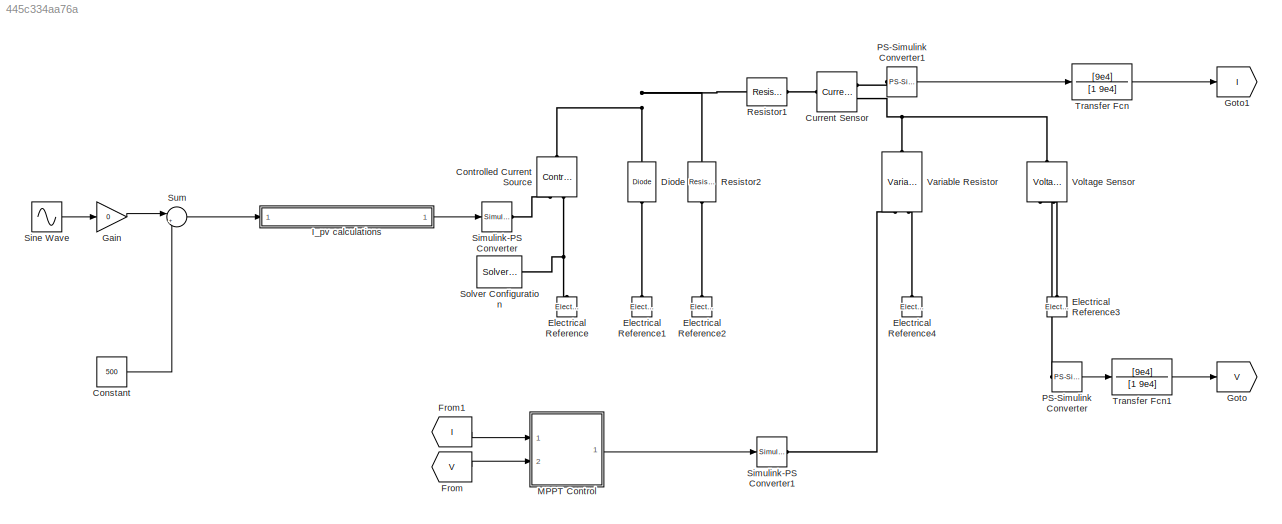
MODEL slx_445c334aa76a
KIND model
CONFIG AbsTol = auto
CONFIG EnableMultiTasking = off
CONFIG FixedStep = 0.001
CONFIG MaxStep = auto
CONFIG MinStep = auto
CONFIG RelTol = 1e-3
CONFIG SampleTimeConstraint = Unconstrained
CONFIG Solver = FixedStepAuto
CONFIG SolverName = FixedStepAuto
CONFIG StartTime = 0.0
CONFIG StopTime = inf
BLOCK [Constant] Constant
  Value = 500
BLOCK [Reference] Controlled Current Source  REF=fl_lib/Electrical/Electrical Sources/Controlled Current
Source
  Ports = [0, 0, 0, 0, 0, 1, 2]
  SourceBlock = fl_lib/Electrical/Electrical Sources/Controlled Current\nSource
  SourceProductBaseCode = SS
  SourceProductName = Simscape
  SourceType = Controlled Current\nSource
BLOCK [Reference] Current Sensor  REF=fl_lib/Electrical/Electrical Sensors/Current Sensor
  Ports = [0, 0, 0, 0, 0, 1, 2]
  SourceBlock = fl_lib/Electrical/Electrical Sensors/Current Sensor
  SourceProductBaseCode = SS
  SourceProductName = Simscape
  SourceType = Current Sensor
BLOCK [Reference] Diode  REF=elec_lib/Semiconductor
Devices/Diode
  Ports = [0, 0, 0, 0, 0, 1, 1]
  SourceBlock = elec_lib/Semiconductor\nDevices/Diode
  SourceProductBaseCode = SN
  SourceProductName = Simscape Electronics
  SourceType = Diode
BLOCK [Reference] Electrical Reference  REF=fl_lib/Electrical/Electrical Elements/Electrical Reference
  Ports = [0, 0, 0, 0, 0, 1]
  SourceBlock = fl_lib/Electrical/Electrical Elements/Electrical Reference
  SourceProductBaseCode = SS
  SourceProductName = Simscape
  SourceType = Electrical Reference
BLOCK [Reference] Electrical Reference1  REF=fl_lib/Electrical/Electrical Elements/Electrical Reference
  Ports = [0, 0, 0, 0, 0, 1]
  SourceBlock = fl_lib/Electrical/Electrical Elements/Electrical Reference
  SourceProductBaseCode = SS
  SourceProductName = Simscape
  SourceType = Electrical Reference
BLOCK [Reference] Electrical Reference2  REF=fl_lib/Electrical/Electrical Elements/Electrical Reference
  Ports = [0, 0, 0, 0, 0, 1]
  SourceBlock = fl_lib/Electrical/Electrical Elements/Electrical Reference
  SourceProductBaseCode = SS
  SourceProductName = Simscape
  SourceType = Electrical Reference
BLOCK [Reference] Electrical Reference3  REF=fl_lib/Electrical/Electrical Elements/Electrical Reference
  Ports = [0, 0, 0, 0, 0, 1]
  SourceBlock = fl_lib/Electrical/Electrical Elements/Electrical Reference
  SourceProductBaseCode = SS
  SourceProductName = Simscape
  SourceType = Electrical Reference
BLOCK [Reference] Electrical Reference4  REF=fl_lib/Electrical/Electrical Elements/Electrical Reference
  Ports = [0, 0, 0, 0, 0, 1]
  SourceBlock = fl_lib/Electrical/Electrical Elements/Electrical Reference
  SourceProductBaseCode = SS
  SourceProductName = Simscape
  SourceType = Electrical Reference
BLOCK [From] From
  GotoTag = V
BLOCK [From] From1
  GotoTag = I
BLOCK [Gain] Gain
  Gain = 0
  OutDataTypeStr = Inherit: Inherit via internal rule
  ParamDataTypeStr = Inherit: Inherit via internal rule
  SaturateOnIntegerOverflow = off
BLOCK [Goto] Goto
  GotoTag = V
BLOCK [Goto] Goto1
  GotoTag = I
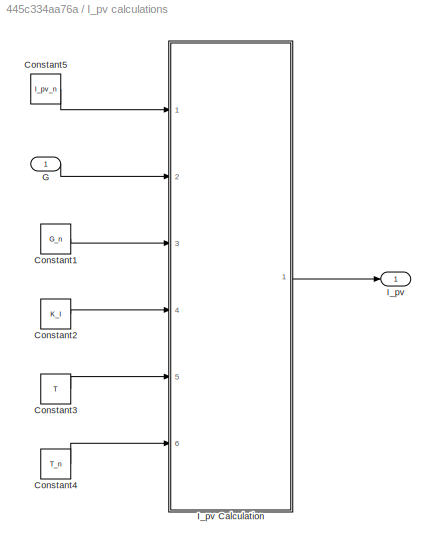
BLOCK [SubSystem] I_pv calculations
  Ports = [1, 1]
  RequestExecContextInheritance = off
  Variant = off
BLOCK [Constant] I_pv calculations/Constant1
  Value = G_n
BLOCK [Constant] I_pv calculations/Constant2
  Value = K_I
BLOCK [Constant] I_pv calculations/Constant3
  Value = T
BLOCK [Constant] I_pv calculations/Constant4
  Value = T_n
BLOCK [Constant] I_pv calculations/Constant5
  Value = I_pv_n
BLOCK [Inport] I_pv calculations/G
  IconDisplay = Port number
BLOCK [Outport] I_pv calculations/I_pv
  IconDisplay = Port number
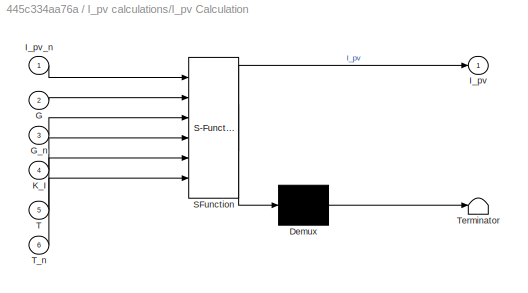
BLOCK [SubSystem] I_pv calculations/I_pv Calculation
  ErrorFcn = Stateflow.Translate.translate
  PermitHierarchicalResolution = ExplicitOnly
  Ports = [6, 1]
  RequestExecContextInheritance = off
  SFBlockType = MATLAB Function
  TreatAsAtomicUnit = on
  Variant = off
BLOCK [Demux] I_pv calculations/I_pv Calculation/ Demux 
  Outputs = 1
  Ports = [1, 1]
BLOCK [S-Function] I_pv calculations/I_pv Calculation/ SFunction 
  EnableBusSupport = on
  FunctionName = sf_sfun
  PortCounts = [6 2]
  Ports = [6, 2]
  SFcnIsStateOwnerBlock = off
  SFunctionDeploymentMode = off
  Tag = Stateflow S-Function GSK_PVModel_06 1
BLOCK [Terminator] I_pv calculations/I_pv Calculation/ Terminator 
BLOCK [Inport] I_pv calculations/I_pv Calculation/G
  IconDisplay = Port number
  Port = 2
BLOCK [Inport] I_pv calculations/I_pv Calculation/G_n
  IconDisplay = Port number
  Port = 3
BLOCK [Outport] I_pv calculations/I_pv Calculation/I_pv
  IconDisplay = Port number
BLOCK [Inport] I_pv calculations/I_pv Calculation/I_pv_n
  IconDisplay = Port number
BLOCK [Inport] I_pv calculations/I_pv Calculation/K_I
  IconDisplay = Port number
  Port = 4
BLOCK [Inport] I_pv calculations/I_pv Calculation/T
  IconDisplay = Port number
  Port = 5
BLOCK [Inport] I_pv calculations/I_pv Calculation/T_n
  IconDisplay = Port number
  Port = 6
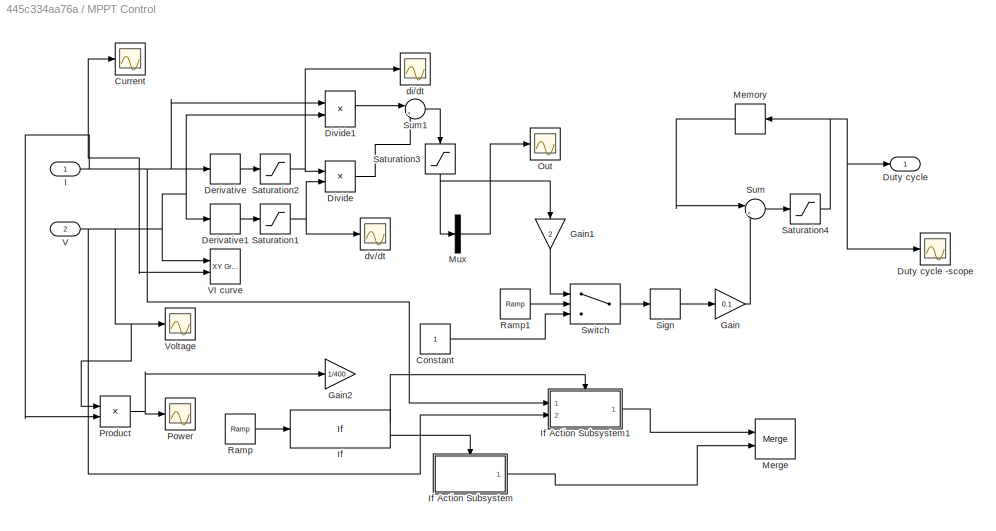
BLOCK [SubSystem] MPPT Control
  Ports = [2, 1]
  RequestExecContextInheritance = off
  Variant = off
BLOCK [Constant] MPPT Control/Constant
BLOCK [Scope] MPPT Control/Current
  NumInputPorts = 1
  Ports = [1]
  ScopeSpecificationString = Simulink.scopes.TimeScopeBlockCfg('CurrentConfiguration', extmgr.ConfigurationSet(extmgr.Configuration('Core','General UI',true),extmgr.Configuration('Core','Source UI',true),extmgr.Configuration('Sources','WiredSimulink',true,'DataLoggingVariableName','ScopeData1'),extmgr.Configuration('Visuals','Time Domain',true,'SerializedDisplays',{struct('MinYLimReal','2.45414','MaxYLimReal','6.99236','YLabe...<+1429ch>
BLOCK [Derivative] MPPT Control/Derivative
  CoefficientInTFapproximation = 300
BLOCK [Derivative] MPPT Control/Derivative1
  CoefficientInTFapproximation = 300
BLOCK [Product] MPPT Control/Divide
  InputSameDT = off
  Inputs = */
  OutDataTypeStr = Inherit: Inherit via internal rule
  Ports = [2, 1]
  RndMeth = Floor
  SaturateOnIntegerOverflow = off
BLOCK [Product] MPPT Control/Divide1
  InputSameDT = off
  Inputs = */
  OutDataTypeStr = Inherit: Inherit via internal rule
  Ports = [2, 1]
  RndMeth = Floor
  SaturateOnIntegerOverflow = off
BLOCK [Outport] MPPT Control/Duty cycle
  IconDisplay = Port number
BLOCK [Scope] MPPT Control/Duty cycle -scope
  NumInputPorts = 1
  Ports = [1]
  ScopeSpecificationString = Simulink.scopes.TimeScopeBlockCfg('CurrentConfiguration', extmgr.ConfigurationSet(extmgr.Configuration('Core','General UI',true),extmgr.Configuration('Core','Source UI',true),extmgr.Configuration('Sources','WiredSimulink',true,'DataLoggingVariableName','ScopeData3'),extmgr.Configuration('Visuals','Time Domain',true,'SerializedDisplays',{struct('MinYLimReal','-21.625','MaxYLimReal','224.625','YLabe...<+1465ch>
BLOCK [Gain] MPPT Control/Gain
  Gain = 0.1
  OutDataTypeStr = Inherit: Inherit via internal rule
  ParamDataTypeStr = Inherit: Inherit via internal rule
  SaturateOnIntegerOverflow = off
BLOCK [Gain] MPPT Control/Gain1
  Gain = 2
  OutDataTypeStr = Inherit: Inherit via internal rule
  ParamDataTypeStr = Inherit: Inherit via internal rule
  SaturateOnIntegerOverflow = off
BLOCK [Gain] MPPT Control/Gain2
  Gain = 1/400
  OutDataTypeStr = Inherit: Inherit via internal rule
  ParamDataTypeStr = Inherit: Inherit via internal rule
  SaturateOnIntegerOverflow = off
BLOCK [Inport] MPPT Control/I
  IconDisplay = Port number
BLOCK [If] MPPT Control/If
  IfExpression = u1 > 1
  Ports = [1, 2]
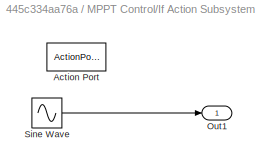
BLOCK [SubSystem] MPPT Control/If Action Subsystem
  Ports = [0, 1, 0, 0, 0, 0, 0, 1]
  RequestExecContextInheritance = off
  TreatAsAtomicUnit = on
  Variant = off
BLOCK [ActionPort] MPPT Control/If Action Subsystem/Action Port
  ActionType = else
BLOCK [Outport] MPPT Control/If Action Subsystem/Out1
  IconDisplay = Port number
BLOCK [Sin] MPPT Control/If Action Subsystem/Sine Wave
  Amplitude = 100
  Bias = 100
  Ports = [0, 1]
  SampleTime = 0
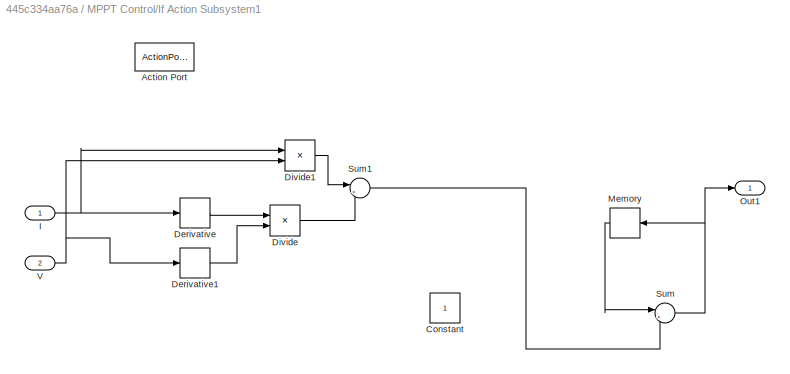
BLOCK [SubSystem] MPPT Control/If Action Subsystem1
  Ports = [2, 1, 0, 0, 0, 0, 0, 1]
  RequestExecContextInheritance = off
  TreatAsAtomicUnit = on
  Variant = off
BLOCK [ActionPort] MPPT Control/If Action Subsystem1/Action Port
  ActionType = then
BLOCK [Constant] MPPT Control/If Action Subsystem1/Constant
BLOCK [Derivative] MPPT Control/If Action Subsystem1/Derivative
BLOCK [Derivative] MPPT Control/If Action Subsystem1/Derivative1
BLOCK [Product] MPPT Control/If Action Subsystem1/Divide
  InputSameDT = off
  Inputs = */
  OutDataTypeStr = Inherit: Inherit via internal rule
  Ports = [2, 1]
  RndMeth = Floor
  SaturateOnIntegerOverflow = off
BLOCK [Product] MPPT Control/If Action Subsystem1/Divide1
  InputSameDT = off
  Inputs = */
  OutDataTypeStr = Inherit: Inherit via internal rule
  Ports = [2, 1]
  RndMeth = Floor
  SaturateOnIntegerOverflow = off
BLOCK [Inport] MPPT Control/If Action Subsystem1/I
  IconDisplay = Port number
BLOCK [Memory] MPPT Control/If Action Subsystem1/Memory
  X0 = 2
BLOCK [Outport] MPPT Control/If Action Subsystem1/Out1
  IconDisplay = Port number
BLOCK [Sum] MPPT Control/If Action Subsystem1/Sum
  IconShape = round
  InputSameDT = off
  Inputs = |++
  OutDataTypeStr = Inherit: Inherit via internal rule
  Ports = [2, 1]
  SaturateOnIntegerOverflow = off
BLOCK [Sum] MPPT Control/If Action Subsystem1/Sum1
  IconShape = round
  InputSameDT = off
  Inputs = |++
  OutDataTypeStr = Inherit: Inherit via internal rule
  Ports = [2, 1]
  SaturateOnIntegerOverflow = off
BLOCK [Inport] MPPT Control/If Action Subsystem1/V
  IconDisplay = Port number
  Port = 2
BLOCK [Memory] MPPT Control/Memory
  X0 = 2
BLOCK [Merge] MPPT Control/Merge
  Ports = [2, 1]
BLOCK [Mux] MPPT Control/Mux
  DisplayOption = bar
  Inputs = 1
  Ports = [1, 1]
BLOCK [Scope] MPPT Control/Out
  NumInputPorts = 1
  Ports = [1]
  ScopeSpecificationString = Simulink.scopes.TimeScopeBlockCfg('CurrentConfiguration', extmgr.ConfigurationSet(extmgr.Configuration('Core','General UI',true),extmgr.Configuration('Core','Source UI',true),extmgr.Configuration('Sources','WiredSimulink',true,'DataLoggingVariableName','ScopeData2'),extmgr.Configuration('Visuals','Time Domain',true,'SerializedDisplays',{struct('MinYLimReal','-754.58072','MaxYLimReal','104.81335','...<+1481ch>
BLOCK [Scope] MPPT Control/Power
  NumInputPorts = 1
  Ports = [1]
  ScopeSpecificationString = Simulink.scopes.TimeScopeBlockCfg('CurrentConfiguration', extmgr.ConfigurationSet(extmgr.Configuration('Core','General UI',true),extmgr.Configuration('Core','Source UI',true),extmgr.Configuration('Sources','WiredSimulink',true,'DataLoggingVariableName','ScopeData1'),extmgr.Configuration('Visuals','Time Domain',true,'SerializedDisplays',{struct('MinYLimReal','-25.10977','MaxYLimReal','225.98795','Y...<+1473ch>
BLOCK [Product] MPPT Control/Product
  InputSameDT = off
  OutDataTypeStr = Inherit: Inherit via internal rule
  Ports = [2, 1]
  RndMeth = Floor
  SaturateOnIntegerOverflow = off
BLOCK [Reference] MPPT Control/Ramp  REF=simulink/Sources/Ramp
  Ports = [0, 1]
  SourceBlock = simulink/Sources/Ramp
  SourceProductBaseCode = SL
  SourceProductName = Simulink
  SourceType = Ramp
BLOCK [Reference] MPPT Control/Ramp1  REF=simulink/Sources/Ramp
  Ports = [0, 1]
  SourceBlock = simulink/Sources/Ramp
  SourceProductBaseCode = SL
  SourceProductName = Simulink
  SourceType = Ramp
BLOCK [Saturate] MPPT Control/Saturation1
  InputPortMap = u0
  LowerLimit = -200
  Ports = [1, 1]
  UpperLimit = 200
BLOCK [Saturate] MPPT Control/Saturation2
  InputPortMap = u0
  LowerLimit = -200
  Ports = [1, 1]
  UpperLimit = 200
BLOCK [Saturate] MPPT Control/Saturation3
  InputPortMap = u0
  LowerLimit = -200
  Ports = [1, 1]
  UpperLimit = 200
BLOCK [Saturate] MPPT Control/Saturation4
  InputPortMap = u0
  LowerLimit = 0
  Ports = [1, 1]
  UpperLimit = 200
BLOCK [Signum] MPPT Control/Sign
BLOCK [Sum] MPPT Control/Sum
  IconShape = round
  InputSameDT = off
  Inputs = |++
  OutDataTypeStr = Inherit: Inherit via internal rule
  Ports = [2, 1]
  SaturateOnIntegerOverflow = off
BLOCK [Sum] MPPT Control/Sum1
  IconShape = round
  InputSameDT = off
  Inputs = |++
  OutDataTypeStr = Inherit: Inherit via internal rule
  Ports = [2, 1]
  SaturateOnIntegerOverflow = off
BLOCK [Switch] MPPT Control/Switch
  Criteria = u2 > Threshold
  InputSameDT = off
  SaturateOnIntegerOverflow = off
  Threshold = 1
BLOCK [Inport] MPPT Control/V
  IconDisplay = Port number
  Port = 2
BLOCK [Reference] MPPT Control/VI curve  REF=simulink/Sinks/XY Graph
  Ports = [2]
  SourceBlock = simulink/Sinks/XY Graph
  SourceProductBaseCode = SL
  SourceProductName = Simulink
  SourceType = XY scope.
BLOCK [Scope] MPPT Control/Voltage
  NumInputPorts = 1
  Ports = [1]
  ScopeSpecificationString = Simulink.scopes.TimeScopeBlockCfg('CurrentConfiguration', extmgr.ConfigurationSet(extmgr.Configuration('Core','General UI',true),extmgr.Configuration('Core','Source UI',true),extmgr.Configuration('Sources','WiredSimulink',true),extmgr.Configuration('Visuals','Time Domain',true,'SerializedDisplays',{struct('MinYLimReal','-10.17481','MaxYLimReal','91.57333','YLabelReal','','MinYLimMag','0.00000','Ma...<+1424ch>
BLOCK [Scope] MPPT Control/di//dt
  NumInputPorts = 1
  Ports = [1]
  ScopeSpecificationString = Simulink.scopes.TimeScopeBlockCfg('CurrentConfiguration', extmgr.ConfigurationSet(extmgr.Configuration('Core','General UI',true),extmgr.Configuration('Core','Source UI',true),extmgr.Configuration('Sources','WiredSimulink',true,'DataLoggingVariableName','ScopeData1'),extmgr.Configuration('Visuals','Time Domain',true),extmgr.Configuration('Tools','Plot Navigation',true),extmgr.Configuration('Tools',...<+40ch>
BLOCK [Scope] MPPT Control/dv//dt
  NumInputPorts = 1
  Ports = [1]
  ScopeSpecificationString = Simulink.scopes.TimeScopeBlockCfg('CurrentConfiguration', extmgr.ConfigurationSet(extmgr.Configuration('Core','General UI',true),extmgr.Configuration('Core','Source UI',true),extmgr.Configuration('Sources','WiredSimulink',true,'DataLoggingVariableName','ScopeData2'),extmgr.Configuration('Visuals','Time Domain',true,'SerializedDisplays',{struct('MinYLimReal','-297.70282','MaxYLimReal','68.60075','Y...<+1401ch>
BLOCK [Reference] PS-Simulink Converter  REF=nesl_utility/PS-Simulink
Converter
  Ports = [0, 1, 0, 0, 0, 1]
  SourceBlock = nesl_utility/PS-Simulink\nConverter
  SourceProductBaseCode = SS
  SourceProductName = Simscape
  SourceType = PS-Simulink\nConverter
BLOCK [Reference] PS-Simulink Converter1  REF=nesl_utility/PS-Simulink
Converter
  Ports = [0, 1, 0, 0, 0, 1]
  SourceBlock = nesl_utility/PS-Simulink\nConverter
  SourceProductBaseCode = SS
  SourceProductName = Simscape
  SourceType = PS-Simulink\nConverter
BLOCK [Reference] Resistor1  REF=fl_lib/Electrical/Electrical Elements/Resistor
  Ports = [0, 0, 0, 0, 0, 1, 1]
  SourceBlock = fl_lib/Electrical/Electrical Elements/Resistor
  SourceProductBaseCode = SS
  SourceProductName = Simscape
  SourceType = Resistor
BLOCK [Reference] Resistor2  REF=fl_lib/Electrical/Electrical Elements/Resistor
  Ports = [0, 0, 0, 0, 0, 1, 1]
  SourceBlock = fl_lib/Electrical/Electrical Elements/Resistor
  SourceProductBaseCode = SS
  SourceProductName = Simscape
  SourceType = Resistor
BLOCK [Reference] Simulink-PS Converter  REF=nesl_utility/Simulink-PS
Converter
  Ports = [1, 0, 0, 0, 0, 0, 1]
  SourceBlock = nesl_utility/Simulink-PS\nConverter
  SourceProductBaseCode = SS
  SourceProductName = Simscape
  SourceType = Simulink-PS\nConverter
BLOCK [Reference] Simulink-PS Converter1  REF=nesl_utility/Simulink-PS
Converter
  Ports = [1, 0, 0, 0, 0, 0, 1]
  SourceBlock = nesl_utility/Simulink-PS\nConverter
  SourceProductBaseCode = SS
  SourceProductName = Simscape
  SourceType = Simulink-PS\nConverter
BLOCK [Sin] Sine Wave
  Amplitude = 200
  Bias = 200
  Frequency = 10
  Ports = [0, 1]
  SampleTime = 0
BLOCK [Reference] Solver Configuration  REF=nesl_utility/Solver
Configuration
  Ports = [0, 0, 0, 0, 0, 0, 1]
  SourceBlock = nesl_utility/Solver\nConfiguration
  SourceProductBaseCode = SS
  SourceProductName = Simscape
  SourceType = Solver\nConfiguration
BLOCK [Sum] Sum
  IconShape = round
  InputSameDT = off
  Inputs = |++
  OutDataTypeStr = Inherit: Inherit via internal rule
  Ports = [2, 1]
  SaturateOnIntegerOverflow = off
BLOCK [TransferFcn] Transfer Fcn
  Denominator = [1 9e4]
  Numerator = [9e4]
BLOCK [TransferFcn] Transfer Fcn1
  Denominator = [1 9e4]
  Numerator = [9e4]
BLOCK [Reference] Variable Resistor  REF=fl_lib/Electrical/Electrical Elements/Variable Resistor
  Ports = [0, 0, 0, 0, 0, 2, 1]
  SourceBlock = fl_lib/Electrical/Electrical Elements/Variable Resistor
  SourceProductBaseCode = SS
  SourceProductName = Simscape
  SourceType = Variable Resistor
BLOCK [Reference] Voltage Sensor  REF=fl_lib/Electrical/Electrical Sensors/Voltage Sensor
  Ports = [0, 0, 0, 0, 0, 1, 2]
  SourceBlock = fl_lib/Electrical/Electrical Sensors/Voltage Sensor
  SourceProductBaseCode = SS
  SourceProductName = Simscape
  SourceType = Voltage Sensor
LINE Constant:1 -> Sum:2
LINE From1:1 -> MPPT Control:1
LINE From:1 -> MPPT Control:2
LINE Gain:1 -> Sum:1
LINE I_pv calculations/Constant1:1 -> I_pv calculations/I_pv Calculation:3
LINE I_pv calculations/Constant2:1 -> I_pv calculations/I_pv Calculation:4
LINE I_pv calculations/Constant3:1 -> I_pv calculations/I_pv Calculation:5
LINE I_pv calculations/Constant4:1 -> I_pv calculations/I_pv Calculation:6
LINE I_pv calculations/Constant5:1 -> I_pv calculations/I_pv Calculation:1
LINE I_pv calculations/G:1 -> I_pv calculations/I_pv Calculation:2
LINE I_pv calculations/I_pv Calculation:1 -> I_pv calculations/I_pv:1
LINE I_pv calculations:1 -> Simulink-PS Converter:1
LINE MPPT Control/Constant:1 -> MPPT Control/Switch:3
LINE MPPT Control/Derivative1:1 -> MPPT Control/Saturation1:1
LINE MPPT Control/Derivative:1 -> MPPT Control/Saturation2:1
LINE MPPT Control/Divide1:1 -> MPPT Control/Sum1:1
LINE MPPT Control/Divide:1 -> MPPT Control/Sum1:2
LINE MPPT Control/Gain1:1 -> MPPT Control/Switch:1
LINE MPPT Control/Gain:1 -> MPPT Control/Sum:2
NET MPPT Control/I:1 -> MPPT Control/Current:1, MPPT Control/Derivative:1, MPPT Control/Divide1:1, MPPT Control/If Action Subsystem1:1, MPPT Control/Product:2, MPPT Control/VI curve:2
LINE MPPT Control/If Action Subsystem/Sine Wave:1 -> MPPT Control/If Action Subsystem/Out1:1
LINE MPPT Control/If Action Subsystem1/Derivative1:1 -> MPPT Control/If Action Subsystem1/Divide:2
LINE MPPT Control/If Action Subsystem1/Derivative:1 -> MPPT Control/If Action Subsystem1/Divide:1
LINE MPPT Control/If Action Subsystem1/Divide1:1 -> MPPT Control/If Action Subsystem1/Sum1:1
LINE MPPT Control/If Action Subsystem1/Divide:1 -> MPPT Control/If Action Subsystem1/Sum1:2
NET MPPT Control/If Action Subsystem1/I:1 -> MPPT Control/If Action Subsystem1/Derivative:1, MPPT Control/If Action Subsystem1/Divide1:1
LINE MPPT Control/If Action Subsystem1/Memory:1 -> MPPT Control/If Action Subsystem1/Sum:1
LINE MPPT Control/If Action Subsystem1/Sum1:1 -> MPPT Control/If Action Subsystem1/Sum:2
NET MPPT Control/If Action Subsystem1/Sum:1 -> MPPT Control/If Action Subsystem1/Memory:1, MPPT Control/If Action Subsystem1/Out1:1
NET MPPT Control/If Action Subsystem1/V:1 -> MPPT Control/If Action Subsystem1/Derivative1:1, MPPT Control/If Action Subsystem1/Divide1:2
LINE MPPT Control/If Action Subsystem1:1 -> MPPT Control/Merge:1
LINE MPPT Control/If Action Subsystem:1 -> MPPT Control/Merge:2
LINE MPPT Control/If:1 -> MPPT Control/If Action Subsystem1:ifaction
LINE MPPT Control/If:2 -> MPPT Control/If Action Subsystem:ifaction
LINE MPPT Control/Memory:1 -> MPPT Control/Sum:1
LINE MPPT Control/Mux:1 -> MPPT Control/Out:1
NET MPPT Control/Product:1 -> MPPT Control/Gain2:1, MPPT Control/Power:1
LINE MPPT Control/Ramp1:1 -> MPPT Control/Switch:2
LINE MPPT Control/Ramp:1 -> MPPT Control/If:1
NET MPPT Control/Saturation1:1 -> MPPT Control/Divide:2, MPPT Control/dv//dt:1
NET MPPT Control/Saturation2:1 -> MPPT Control/Divide:1, MPPT Control/di//dt:1
NET MPPT Control/Saturation3:1 -> MPPT Control/Gain1:1, MPPT Control/Mux:1
NET MPPT Control/Saturation4:1 -> MPPT Control/Duty cycle -scope:1, MPPT Control/Duty cycle:1, MPPT Control/Memory:1
LINE MPPT Control/Sign:1 -> MPPT Control/Gain:1
LINE MPPT Control/Sum1:1 -> MPPT Control/Saturation3:1
LINE MPPT Control/Sum:1 -> MPPT Control/Saturation4:1
LINE MPPT Control/Switch:1 -> MPPT Control/Sign:1
NET MPPT Control/V:1 -> MPPT Control/Derivative1:1, MPPT Control/Divide1:2, MPPT Control/If Action Subsystem1:2, MPPT Control/Product:1, MPPT Control/VI curve:1, MPPT Control/Voltage:1
LINE MPPT Control:1 -> Simulink-PS Converter1:1
LINE PS-Simulink Converter1:1 -> Transfer Fcn:1
LINE PS-Simulink Converter:1 -> Transfer Fcn1:1
LINE Sine Wave:1 -> Gain:1
LINE Sum:1 -> I_pv calculations:1
LINE Transfer Fcn1:1 -> Goto:1
LINE Transfer Fcn:1 -> Goto1:1
PNET net1: Controlled Current Source:LConn1 -- Diode:LConn1 -- Resistor1:LConn1 -- Resistor2:LConn1
PLINE Controlled Current Source:RConn1 -- Simulink-PS Converter:RConn1
PNET net2: Controlled Current Source:RConn2 -- Electrical Reference:LConn1 -- Solver Configuration:RConn1
PLINE Current Sensor:LConn1 -- Resistor1:RConn1
PLINE Current Sensor:RConn1 -- PS-Simulink Converter1:LConn1
PNET net3: Current Sensor:RConn2 -- Variable Resistor:RConn1 -- Voltage Sensor:LConn1
PLINE Diode:RConn1 -- Electrical Reference1:LConn1
PLINE Electrical Reference2:LConn1 -- Resistor2:RConn1
PLINE Electrical Reference3:LConn1 -- Voltage Sensor:RConn2
PLINE Electrical Reference4:LConn1 -- Variable Resistor:LConn2
PLINE PS-Simulink Converter:LConn1 -- Voltage Sensor:RConn1
PLINE Simulink-PS Converter1:RConn1 -- Variable Resistor:LConn1
note: NET lines group one-source signal fan-out (src -> all destinations, sorted); 1:1 wires keep LINE; PNET lines group multi-terminal physical nets as a canonical sorted terminal list (undirected conserving connections); 2-terminal nets keep the pairwise PLINE form
CHART I_pv calculations/I_pv Calculation states=1 transitions=1
  STATE_LABEL 'eML_blk_kernel()'
  STATE_LABEL 'SCRIPT:\nfunction I_pv = fcn(I_pv_n, G, G_n, K_I, T, T_n )\n%#codegen\nDelta_T = (T - T_n);\nI_pv = (I_pv_n + K_I*Delta_T)*G/G_n;'
